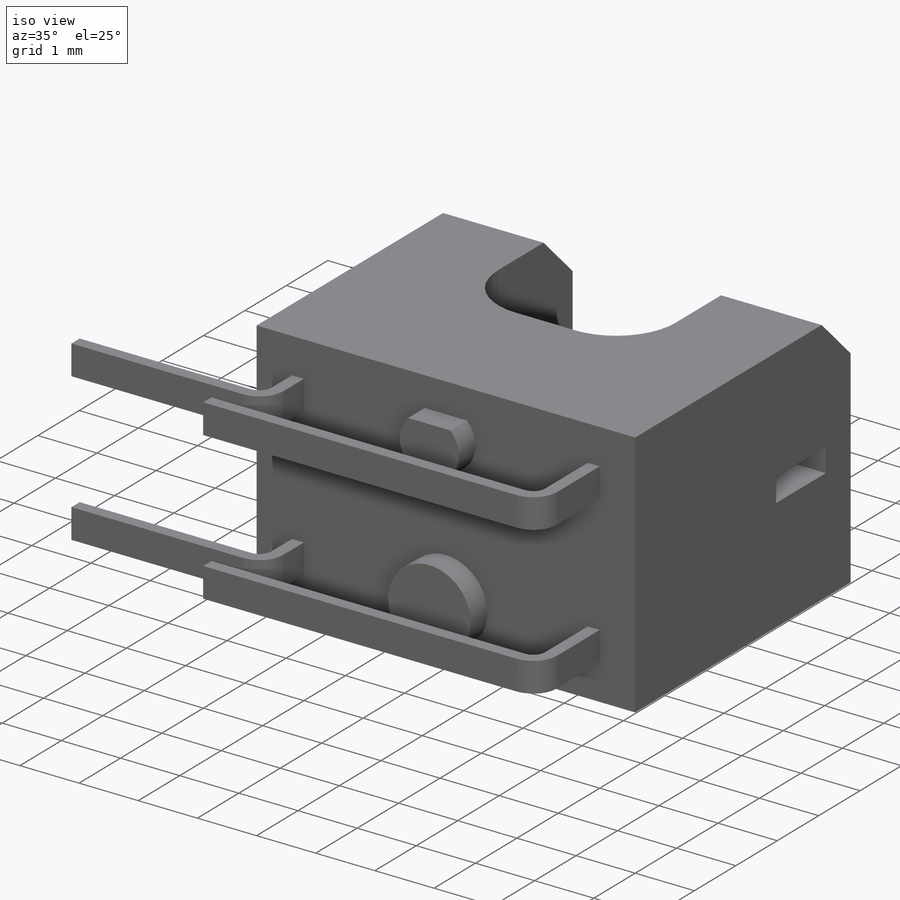
[diagram: iso view]
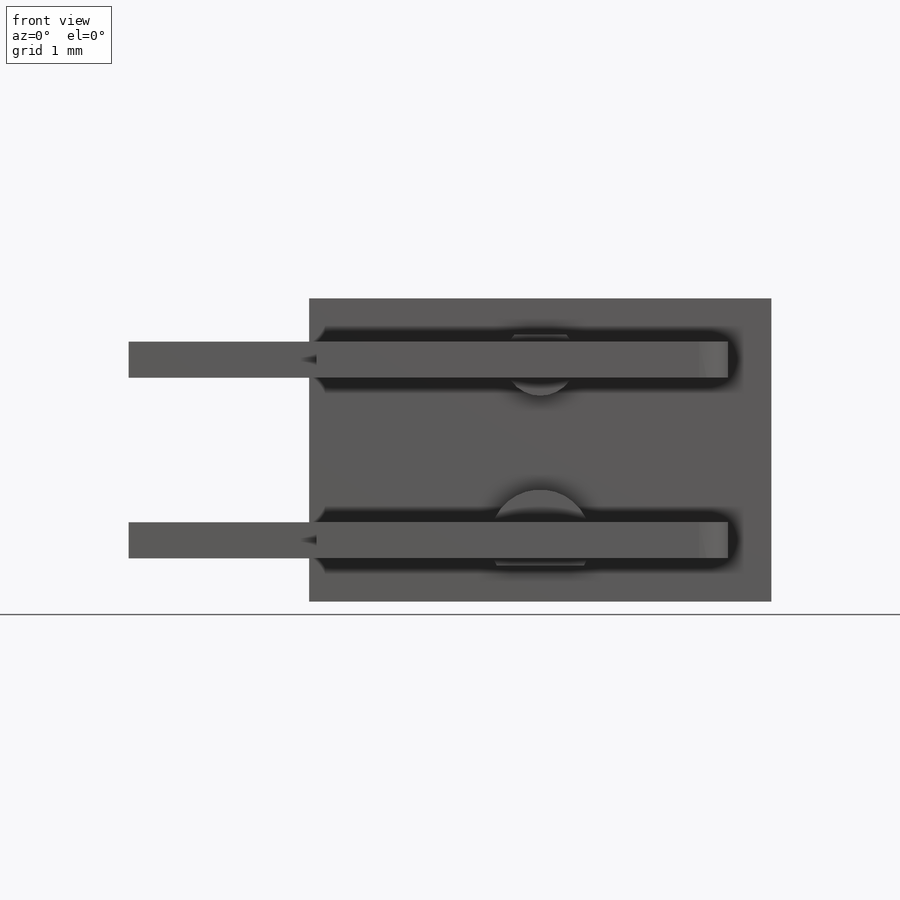
[diagram: front view]
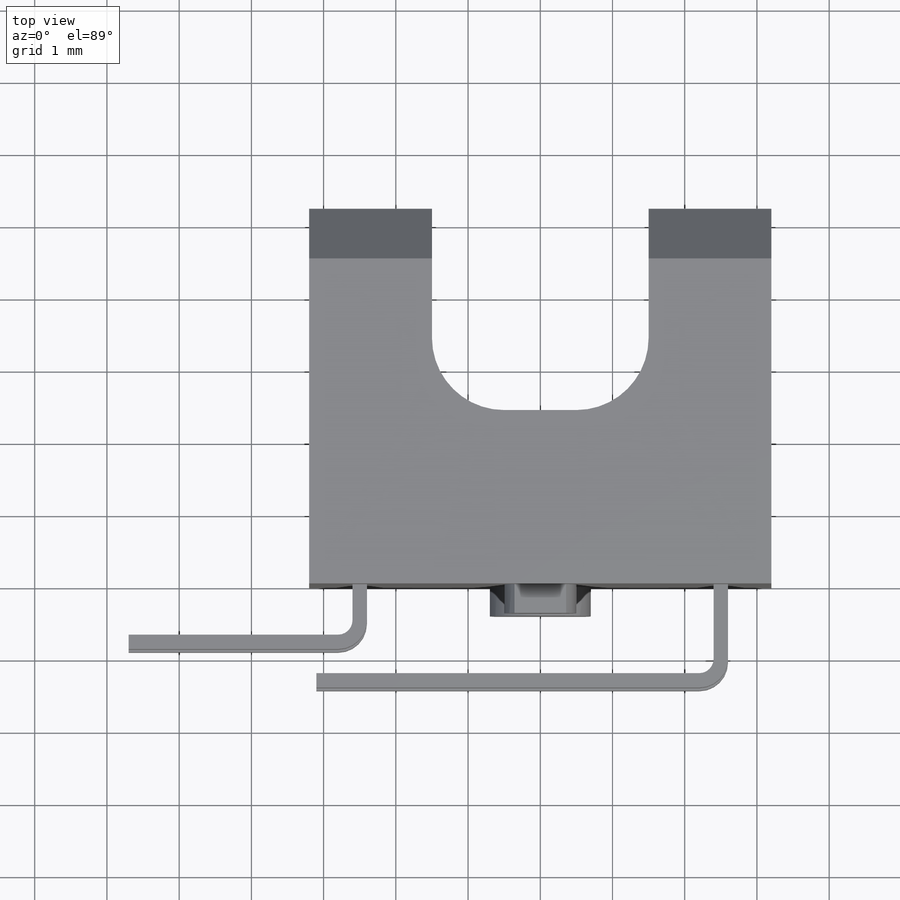
[diagram: top view]
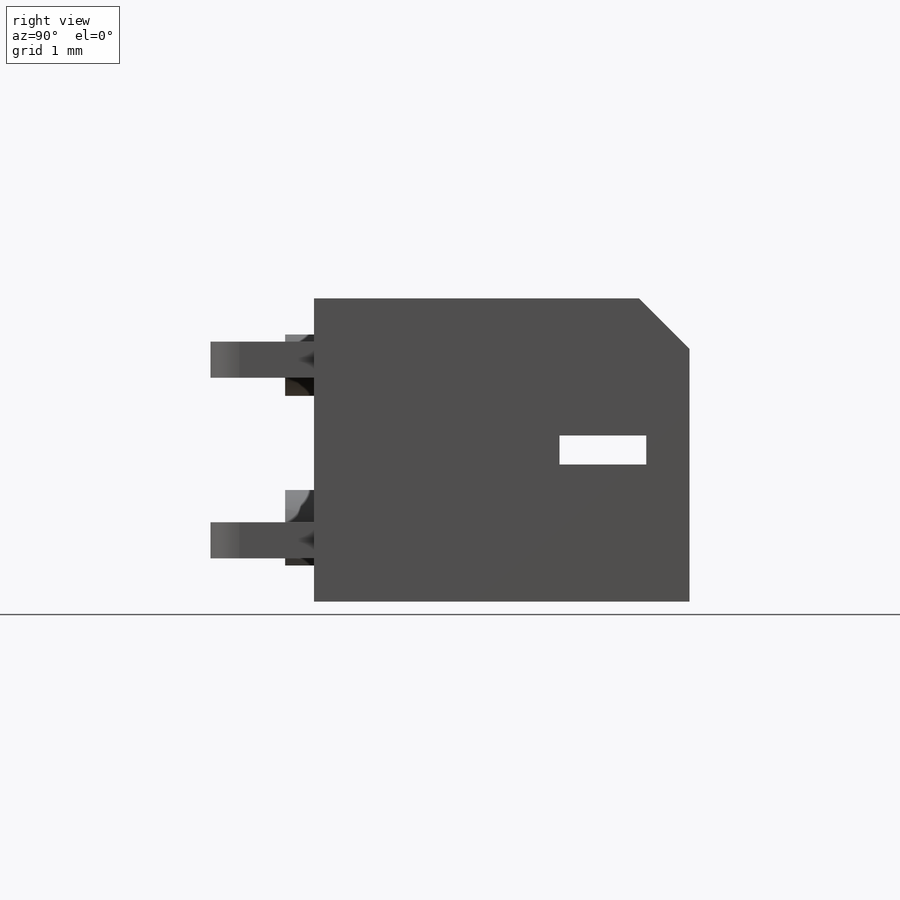
[diagram: right view]
SOLIDWORKS PART (.sldprt)
format: sldprt  version: not decoded by parser v0  size: 298,496 bytes
history: native  units: mm
features: sketch x7, plane x3, extrude x2, sweep x2, material x1, chamfer x1, cut_extrude x1 (+13 scaffold rows collapsed)
feature tree (30):
  scaffold x13  (default folders/planes/origin — collapsed)
  material  "ПК/АБС"
  plane  "Спереди"
  plane  "Сверху"
  plane  "Справа"
  sketch  "Эскиз1"  dims[c1.D1=1.0mm c1.D2=0.5mm c2.D1=~0.353269mm c3.D1=45.0deg c3.D2=~0.352915mm c4.D2=45.0deg c4.D3=3.0mm c4.D4=2.8mm c4.D5=6.4mm c4.D6=5.2mm c4.D7=0.3mm]
  extrude  "Бобышка-Вытянуть1"  Depth=4.2mm
  chamfer  "Фаска1"  Distance=0.7mm Angle=45deg
  sketch  "Эскиз2"  dims[D1=0.4mm D2=1.2mm D3=1.2mm]
  cut_extrude  "Вырез-Вытянуть1"  [1 undecoded]
  sketch  "Эскиз3"  dims[c1.D1=0.7mm c1.D2=0.5mm c1.D8=0.7mm c1.D9=0.5mm c1.D10=0.5mm c2.D1=0.5mm c2.D3=3.2mm c2.D4=0.2mm c2.D5=0.5mm c2.D6=2.5mm c2.D7=5.0mm c2.D8=1.6mm c2.D9=2.45mm c2.D10=1.25mm c2.D2=0.2mm c3.D3=0.5mm]
  extrude  "Бобышка-Вытянуть2"  Depth=0.4mm
  sketch  "Эскиз4"
  sketch  "Трехмерный эскиз1"  dims[D1=0.2mm D2=5.5mm]
  sweep  "По траектории1"
  sketch  "Эскиз5"
  sketch  "Трехмерный эскиз2"  dims[D1=0.2mm D2=2.5mm D3=0.7mm]
  sweep  "По траектории2"
decode coverage: 8 of 13 modeling features carry decoded parameters
note: ~ marks probable driven/reference dimensions
note: 1 parameter value undecoded
note: suppression state not decoded; provenance and decode notes live in map.json
